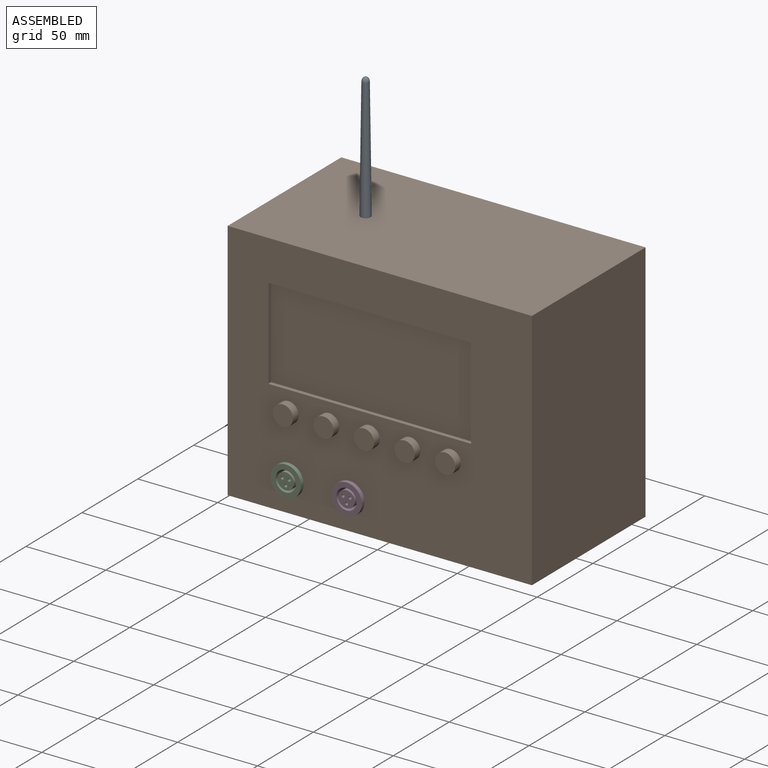
[diagram: assembled view]
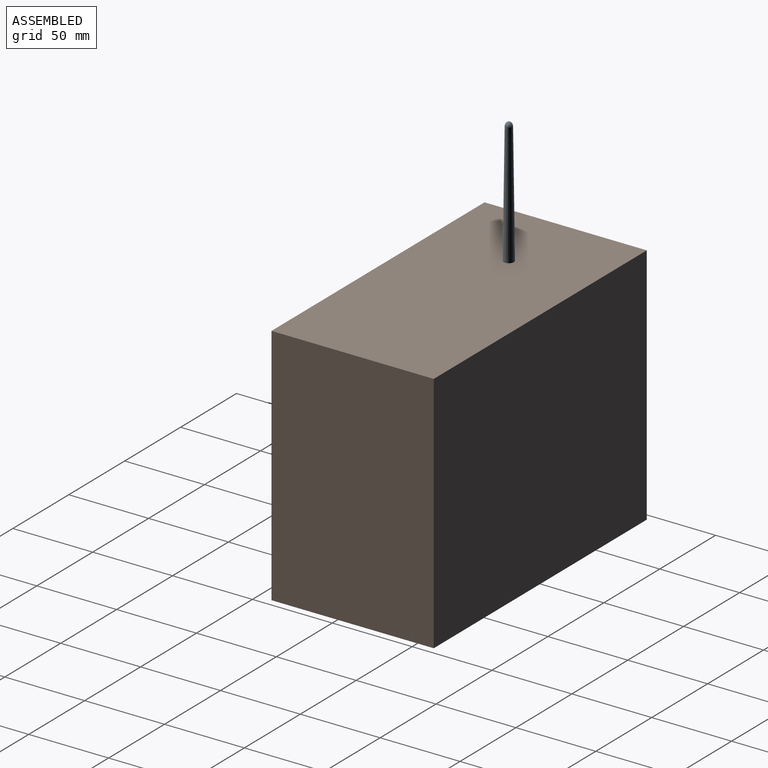
[diagram: assembled view, second angle]
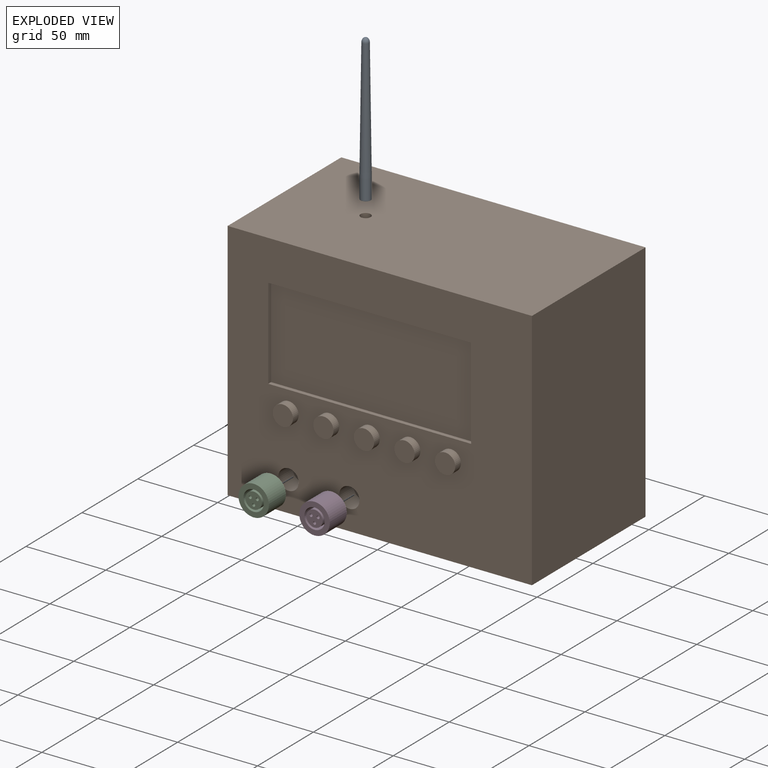
[diagram: exploded view]
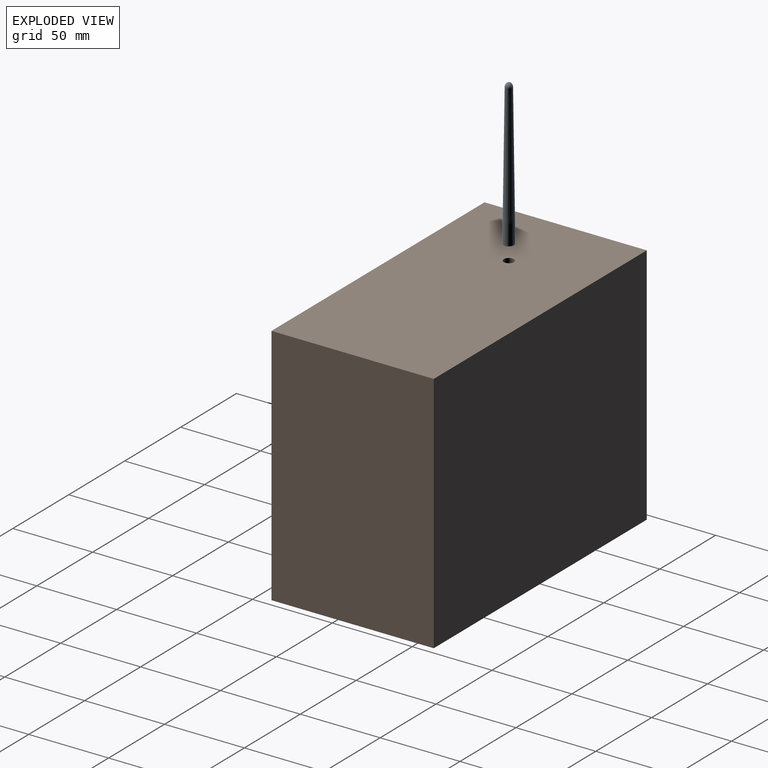
[diagram: exploded view, second angle]
ASSEMBLY  parts=4 mates=3
PART A: 4 faces, bbox 6.4x6.4x91.5 mm
  f0: plane 6.35x6.35mm, normal (0,0,-1), area 31.7mm2, adj f1
  f1: cylinder r=3.17mm len=12.7mm, axis (0,0,-1), area 253.4mm2, adj f0,f2
  f2: cone r=3.17mm half-angle=0.8deg, axis (0,0,-1), area 1280.3mm2, adj f1,f3
  f3: revolved ~4.35x4.35mm, area 31.9mm2, adj f2
PART B: 27 faces, bbox 190.5x106.7x152.4 mm
  f0: plane 190.5x152.4mm, normal (0,-1,0), area 20887.4mm2, adj f1,f2,f3,f4,f6,f7,f8,f9
  f1: plane 152.4x101.6mm, normal (-1,0,0), area 15483.8mm2, adj f0,f2,f4,f5
  f2: plane 190.5x101.6mm, normal (0,0,-1), area 19354.8mm2, adj f0,f1,f3,f5
  f3: plane 152.4x101.6mm, normal (1,0,0), area 15483.8mm2, adj f0,f2,f4,f5
  f4: plane 190.5x101.6mm, normal (0,0,1), area 19323.1mm2, adj f0,f1,f3,f5,f26
  f5: plane 190.5x152.4mm, normal (0,1,0), area 29032.2mm2, adj f1,f2,f3,f4
  f6: plane 127x2.54mm, normal (0,0,-1), area 322.6mm2, adj f0,f7,f9,f10
  f7: plane 57.15x2.54mm, normal (1,0,0), area 145.2mm2, adj f0,f6,f8,f10
  f8: plane 127x2.54mm, normal (0,0,1), area 322.6mm2, adj f0,f7,f9,f10
  f9: plane 57.15x2.54mm, normal (-1,0,0), area 145.2mm2, adj f0,f6,f8,f10
  f10: plane 127x57.15mm, normal (0,-1,0), area 7258.1mm2, adj f6,f7,f8,f9
  f11: cylinder r=6.35mm len=12.7mm, axis (0,1,0), area 202.7mm2, adj f0,f12
  f12: plane 12.7x12.7mm, normal (0,-1,0), area 126.7mm2, adj f11
  f13: cylinder r=6.35mm len=12.7mm, axis (0,1,0), area 202.7mm2, adj f0,f14
  f14: plane 12.7x12.7mm, normal (0,-1,0), area 126.7mm2, adj f13
  f15: cylinder r=6.35mm len=12.7mm, axis (0,1,0), area 202.7mm2, adj f0,f16
  f16: plane 12.7x12.7mm, normal (0,-1,0), area 126.7mm2, adj f15
  f17: cylinder r=6.35mm len=12.7mm, axis (0,1,0), area 202.7mm2, adj f0,f18
  f18: plane 12.7x12.7mm, normal (0,-1,0), area 126.7mm2, adj f17
  f19: cylinder r=6.35mm len=12.7mm, axis (0,1,0), area 202.7mm2, adj f0,f20
  f20: plane 12.7x12.7mm, normal (0,-1,0), area 126.7mm2, adj f19
  f21: cylinder r=6.35mm len=12.7mm, axis (0,-1,0), area 506.7mm2, adj f0,f22
  f22: plane 12.7x12.7mm, normal (0,-1,0), area 126.7mm2, adj f21
  f23: cylinder r=6.35mm len=12.7mm, axis (0,-1,0), area 506.7mm2, adj f0,f24
  f24: plane 12.7x12.7mm, normal (0,-1,0), area 126.7mm2, adj f23
  f25: cone r=0mm half-angle=59deg, axis (0,0,1), area 36.9mm2, adj f26
  f26: cylinder r=3.17mm len=12.7mm, axis (0,0,1), area 253.4mm2, adj f4,f25
PART C: 13 faces, bbox 19.1x15.2x19.1 mm
  f0: cylinder r=9.53mm len=19.05mm, axis (0,-1,0), area 912.1mm2, adj f1,f2
  f1: plane 19.05x19.05mm, normal (0,1,0), area 285mm2, adj f0
  f2: plane 19.05x19.05mm, normal (0,-1,0), area 158.3mm2, adj f0,f4
  f3: cylinder r=5.08mm len=12.7mm, axis (0,-1,0), area 405.4mm2, adj f5,f6
  f4: cylinder r=6.35mm len=12.7mm, axis (0,-1,0), area 506.7mm2, adj f2,f5
  f5: plane 12.7x12.7mm, normal (0,-1,0), area 45.6mm2, adj f3,f4
  f6: plane 10.16x10.16mm, normal (0,-1,0), area 72.5mm2, adj f3,f7,f9,f11
  f7: cylinder r=0.95mm len=12.7mm, axis (0,-1,0), area 76mm2, adj f6,f8
  f8: plane 1.91x1.91mm, normal (0,-1,0), area 2.9mm2, adj f7
  f9: cylinder r=0.95mm len=12.7mm, axis (0,-1,0), area 76mm2, adj f6,f10
  f10: plane 1.91x1.91mm, normal (0,-1,0), area 2.9mm2, adj f9
  f11: cylinder r=0.95mm len=12.7mm, axis (0,-1,0), area 76mm2, adj f6,f12
  f12: plane 1.91x1.91mm, normal (0,-1,0), area 2.9mm2, adj f11
PART D: same geometry as C
PLACE A t=(3.54,63.06,112.72)mm
PLACE B t=(-47.26,12.26,-26.98)mm
PLACE C t=(-9.16,9.72,-7.93)mm
PLACE D t=(28.94,9.72,-7.93)mm
MATE fastened A.f1 <-> B.f25  axis (0,0,-1) through (3.54,63.06,112.72)mm
MATE fastened D.f0 <-> B.f21  axis (0,1,0) through (28.94,24.96,-7.93)mm
MATE fastened C.f0 <-> B.f23  axis (0,1,0) through (-9.16,24.96,-7.93)mm
